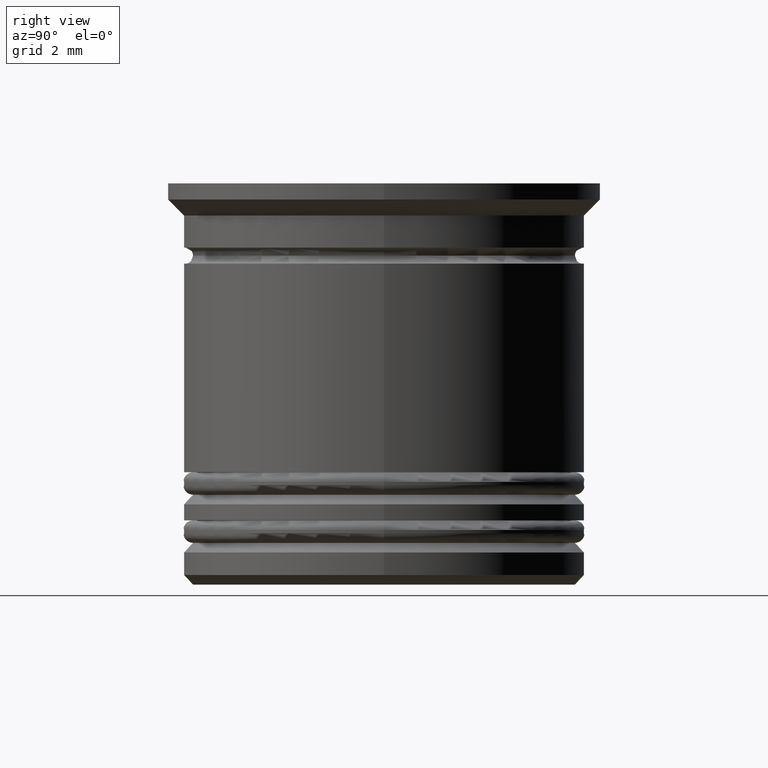
[diagram: clean part render]
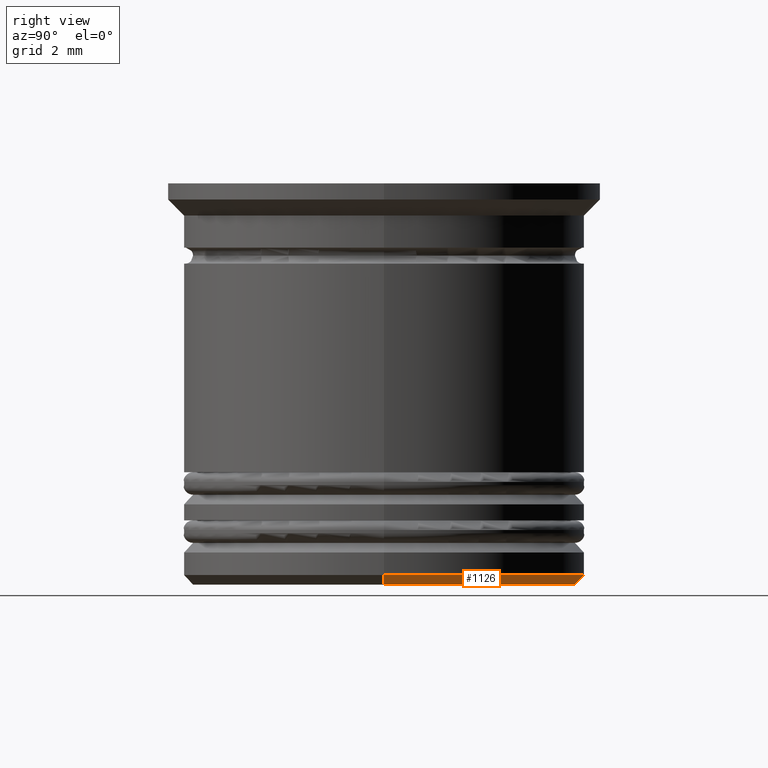
[diagram: same view with one face highlighted and labeled with its STEP entity id]
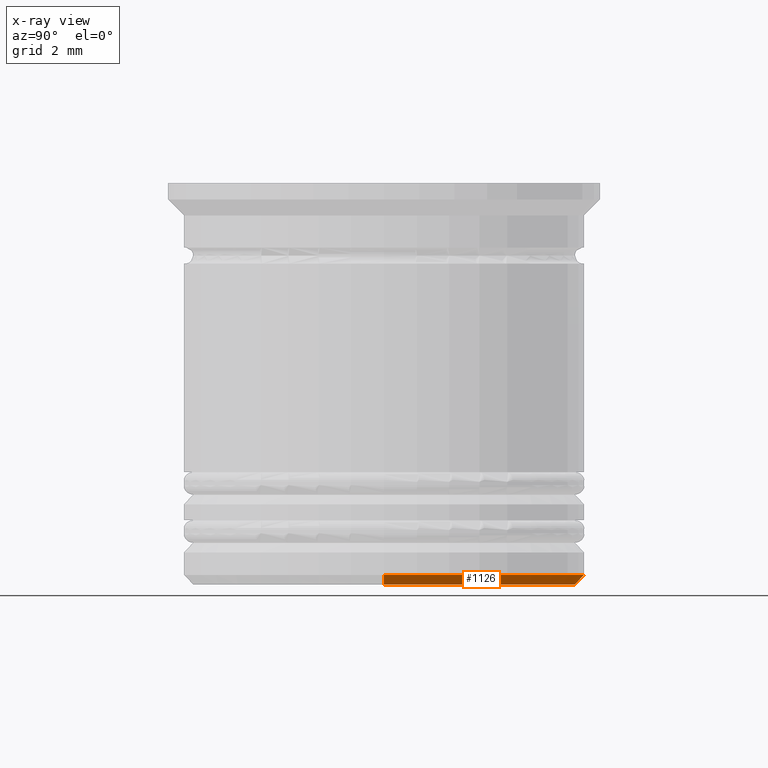
[diagram: x-ray of the same camera — body ghosted, the highlighted face saturated]
A machine part, right view. The second image highlights one B-rep face of the part: STEP entity #1126.
The next image is the same camera in x-ray: the body ghosted, the highlighted face saturated — about 0% of this face is hidden behind the body in this view.
In plain terms, the highlighted conical surface has half-angle 45 deg.
Its self-contained STEP definition (entity closure, byte-faithful):
#86 = VERTEX_POINT ( 'NONE', #1371 ) ;
#174 = CONICAL_SURFACE ( 'NONE', #1030, 6.250000000000000000, 0.7853981633974482790 ) ;
#178 = ORIENTED_EDGE ( 'NONE', *, *, #1602, .F. ) ;
#212 = VERTEX_POINT ( 'NONE', #691 ) ;
#347 = FACE_OUTER_BOUND ( 'NONE', #1182, .T. ) ;
#359 = ORIENTED_EDGE ( 'NONE', *, *, #855, .T. ) ;
#451 = VECTOR ( 'NONE', #756, 1000.000000000000114 ) ;
#475 = CARTESIAN_POINT ( 'NONE',  ( 6.250000000000000000, 0.000000000000000000, -12.20000000000000284 ) ) ;
#484 = AXIS2_PLACEMENT_3D ( 'NONE', #1735, #1268, #717 ) ;
#526 = VERTEX_POINT ( 'NONE', #1379 ) ;
#550 = VECTOR ( 'NONE', #1393, 1000.000000000000114 ) ;
#640 = ORIENTED_EDGE ( 'NONE', *, *, #911, .F. ) ;
#691 = CARTESIAN_POINT ( 'NONE',  ( 5.950000000000001954, 0.000000000000000000, -12.50000000000000000 ) ) ;
#717 = DIRECTION ( 'NONE',  ( -1.000000000000000000, 0.000000000000000000, 0.000000000000000000 ) ) ;
#756 = DIRECTION ( 'NONE',  ( -0.7071067811865474617, 8.659560562354932858E-17, 0.7071067811865474617 ) ) ;
#855 = EDGE_CURVE ( 'NONE', #526, #86, #1641, .T. ) ;
#911 = EDGE_CURVE ( 'NONE', #1070, #86, #1093, .T. ) ;
#923 = CARTESIAN_POINT ( 'NONE',  ( 6.250000000000000000, 0.000000000000000000, -12.20000000000000284 ) ) ;
#998 = EDGE_CURVE ( 'NONE', #212, #1070, #1067, .T. ) ;
#1030 = AXIS2_PLACEMENT_3D ( 'NONE', #1589, #1136, #1898 ) ;
#1067 = LINE ( 'NONE', #923, #550 ) ;
#1070 = VERTEX_POINT ( 'NONE', #475 ) ;
#1093 = CIRCLE ( 'NONE', #1348, 6.250000000000000000 ) ;
#1126 = ADVANCED_FACE ( 'NONE', ( #347 ), #174, .T. ) ;
#1136 = DIRECTION ( 'NONE',  ( -0.000000000000000000, -0.000000000000000000, 1.000000000000000000 ) ) ;
#1182 = EDGE_LOOP ( 'NONE', ( #178, #359, #640, #1753 ) ) ;
#1268 = DIRECTION ( 'NONE',  ( 0.000000000000000000, 0.000000000000000000, -1.000000000000000000 ) ) ;
#1319 = CIRCLE ( 'NONE', #484, 5.950000000000001954 ) ;
#1322 = DIRECTION ( 'NONE',  ( -0.000000000000000000, -0.000000000000000000, 1.000000000000000000 ) ) ;
#1348 = AXIS2_PLACEMENT_3D ( 'NONE', #1473, #1322, #1652 ) ;
#1371 = CARTESIAN_POINT ( 'NONE',  ( -6.250000000000000000, 7.654042494670957606E-16, -12.20000000000000284 ) ) ;
#1379 = CARTESIAN_POINT ( 'NONE',  ( -5.950000000000001954, 7.470345474798856265E-16, -12.50000000000000000 ) ) ;
#1393 = DIRECTION ( 'NONE',  ( 0.7071067811865474617, 0.000000000000000000, 0.7071067811865474617 ) ) ;
#1473 = CARTESIAN_POINT ( 'NONE',  ( 0.000000000000000000, 0.000000000000000000, -12.20000000000000284 ) ) ;
#1517 = CARTESIAN_POINT ( 'NONE',  ( -6.250000000000000000, 7.654042494670957606E-16, -12.20000000000000284 ) ) ;
#1589 = CARTESIAN_POINT ( 'NONE',  ( 0.000000000000000000, 0.000000000000000000, -12.20000000000000284 ) ) ;
#1602 = EDGE_CURVE ( 'NONE', #526, #212, #1319, .T. ) ;
#1641 = LINE ( 'NONE', #1517, #451 ) ;
#1652 = DIRECTION ( 'NONE',  ( -1.000000000000000000, 0.000000000000000000, 0.000000000000000000 ) ) ;
#1735 = CARTESIAN_POINT ( 'NONE',  ( 0.000000000000000000, 0.000000000000000000, -12.50000000000000000 ) ) ;
#1753 = ORIENTED_EDGE ( 'NONE', *, *, #998, .F. ) ;
#1898 = DIRECTION ( 'NONE',  ( 1.000000000000000000, 0.000000000000000000, 0.000000000000000000 ) ) ;